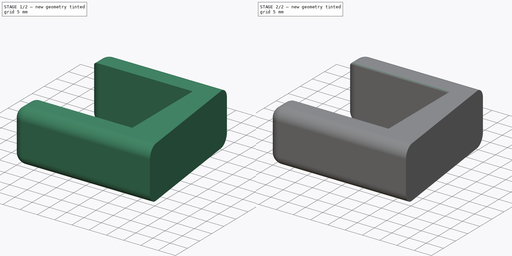
[diagram: build sequence overview — one tinted view per stage of 2, left to right]
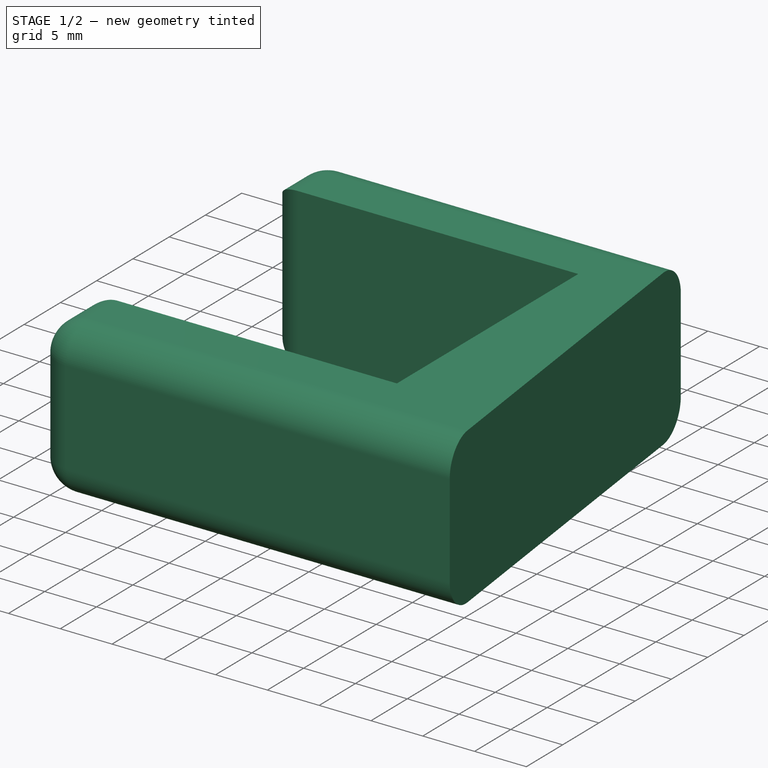
[diagram: stage 1 of 2 — iso view after this stage's code; geometry added in this stage tinted green]
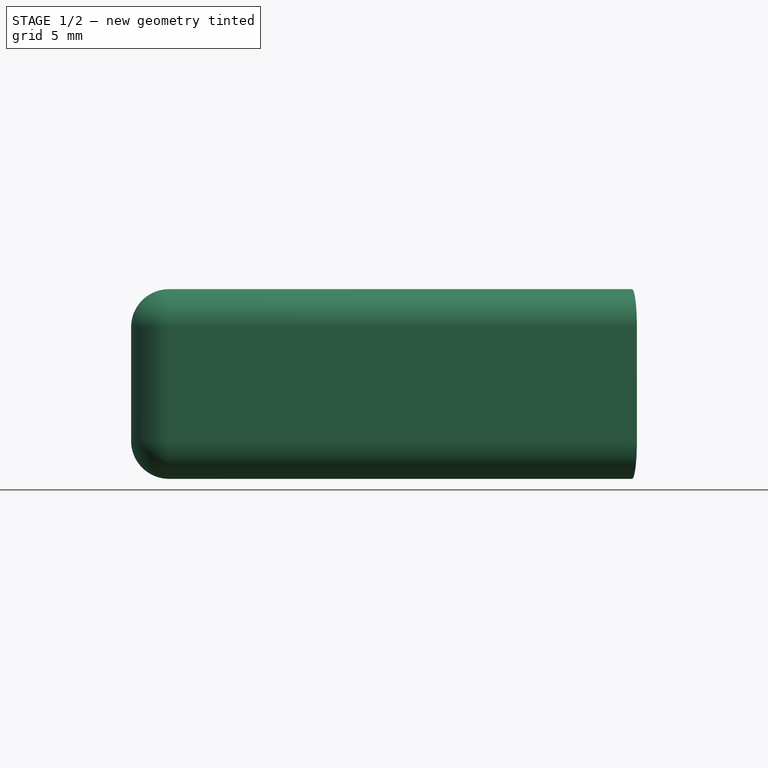
[diagram: stage 1 of 2 — front view after this stage's code; geometry added in this stage tinted green]
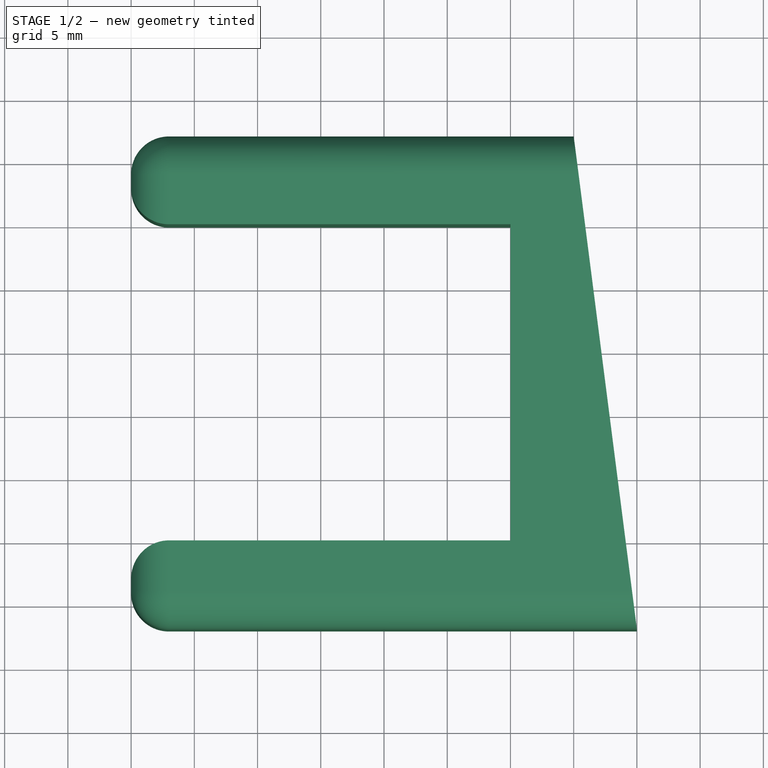
[diagram: stage 1 of 2 — top view after this stage's code; geometry added in this stage tinted green]
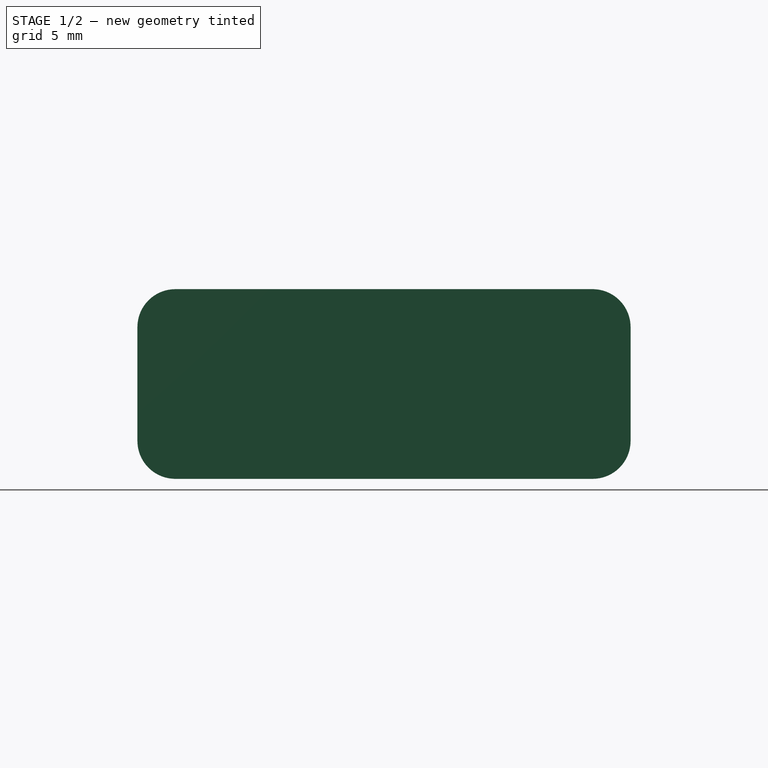
[diagram: stage 1 of 2 — right view after this stage's code; geometry added in this stage tinted green]
FCSTD DOCUMENT  (FreeCAD 0.21R33771 (Git))
Label: makeup_table_trashcan
License: All rights reserved
LicenseURL: https://en.wikipedia.org/wiki/All_rights_reserved
objects: PartDesign::Fillet×2, Sketcher::SketchObject×1, PartDesign::Pad×1, PartDesign::Body×1
note: 8 computed .brp shape members not serialized (recipe doc carries the construction recipe); baked Part::Feature solids carry a one-line shape summary decoded from their .brp

FEATURE [Sketcher::SketchObject] Sketch
  FullyConstrained = true
  MapMode = 5
  Support = -> [XY_Plane]
  sketch-geometry (8):
    g0: LineSegment StartX=0 StartY=0 StartZ=0 EndX=30 EndY=0 EndZ=0
    g1: LineSegment StartX=30 StartY=0 StartZ=0 EndX=30 EndY=25 EndZ=0
    g2: LineSegment StartX=30 StartY=25 StartZ=0 EndX=0 EndY=25 EndZ=0
    g3: LineSegment StartX=0 StartY=25 StartZ=0 EndX=0 EndY=32 EndZ=0
    g4: LineSegment StartX=0 StartY=32 StartZ=0 EndX=35 EndY=32 EndZ=0
    g5: LineSegment StartX=35 StartY=32 StartZ=0 EndX=40 EndY=-7 EndZ=0
    g6: LineSegment StartX=40 StartY=-7 StartZ=0 EndX=0 EndY=-7 EndZ=0
    g7: LineSegment StartX=0 StartY=-7 StartZ=0 EndX=0 EndY=0 EndZ=0
  constraints (23):
    c: Coincident(g0,g-1)
    c: PointOnObject(g0,g-1)
    c: Coincident(g1,g0)
    c: Vertical(g1)
    c: Coincident(g2,g1)
    c: PointOnObject(g2,g-2)
    c: Horizontal(g2)
    c: Coincident(g3,g2)
    c: PointOnObject(g3,g-2)
    c: Coincident(g4,g3)
    c: Horizontal(g4)
    c: Coincident(g5,g4)
    c: Coincident(g6,g5)
    c: PointOnObject(g6,g-2)
    c: Horizontal(g6)
    c: Coincident(g7,g6)
    c: Coincident(g7,g0)
    c: DistanceY(g1,g1) = 25
    c: DistanceX(g0,g0) = 30
    c: Equal(g3,g7)
    c: DistanceY(g3,g3) = 7
    c: DistanceX(g4,g5) = 5
    c: DistanceX(g1,g4) = 5
FEATURE [PartDesign::Pad] Pad
  Direction = (0,0,1)
  Length = 15
  Length2 = 10
  Profile = -> Sketch
  ReferenceAxis = -> Sketch [N_Axis]
  Type = 0
FEATURE [PartDesign::Fillet] Fillet
  Base = -> Pad [Edge16,Edge15,Edge11,Edge8,Edge12,Edge13,Edge1,Edge23,Edge20,Edge24,Edge22,Edge21]
  BaseFeature = -> Pad
  Radius = 3
  SupportTransform = false
  UseAllEdges = false
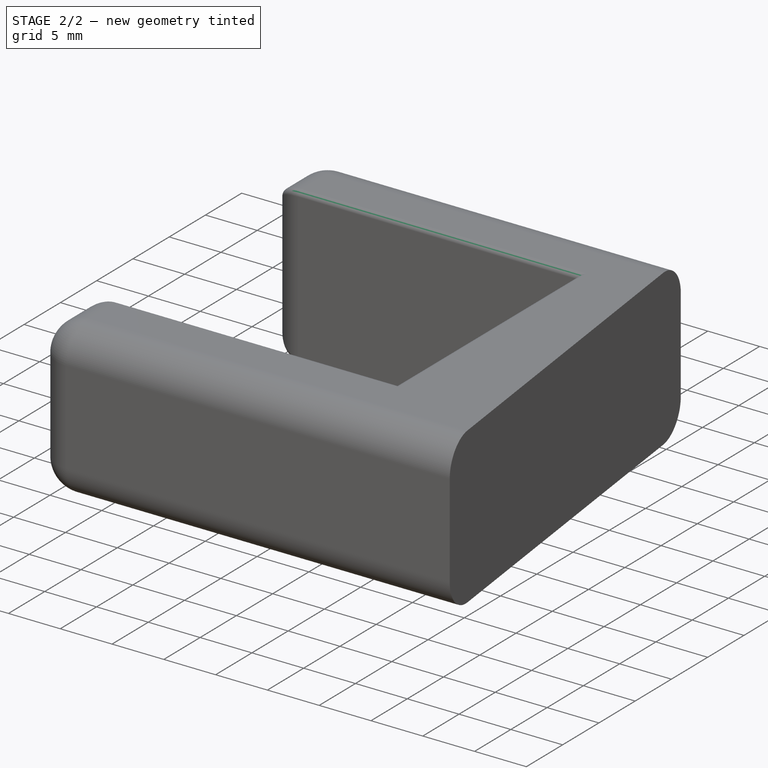
[diagram: stage 2 of 2 — iso view after this stage's code; geometry added in this stage tinted green]
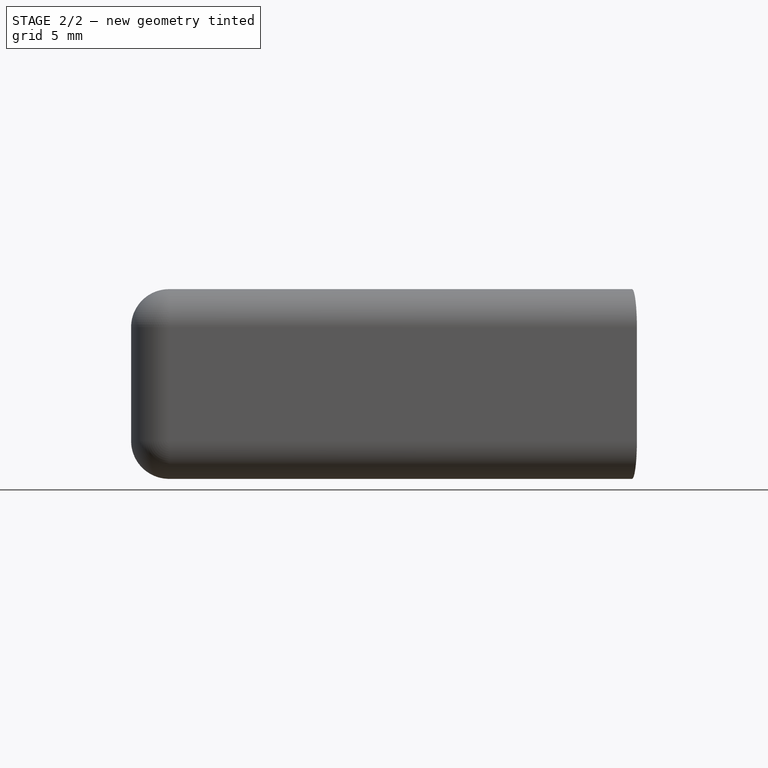
[diagram: stage 2 of 2 — front view after this stage's code; geometry added in this stage tinted green]
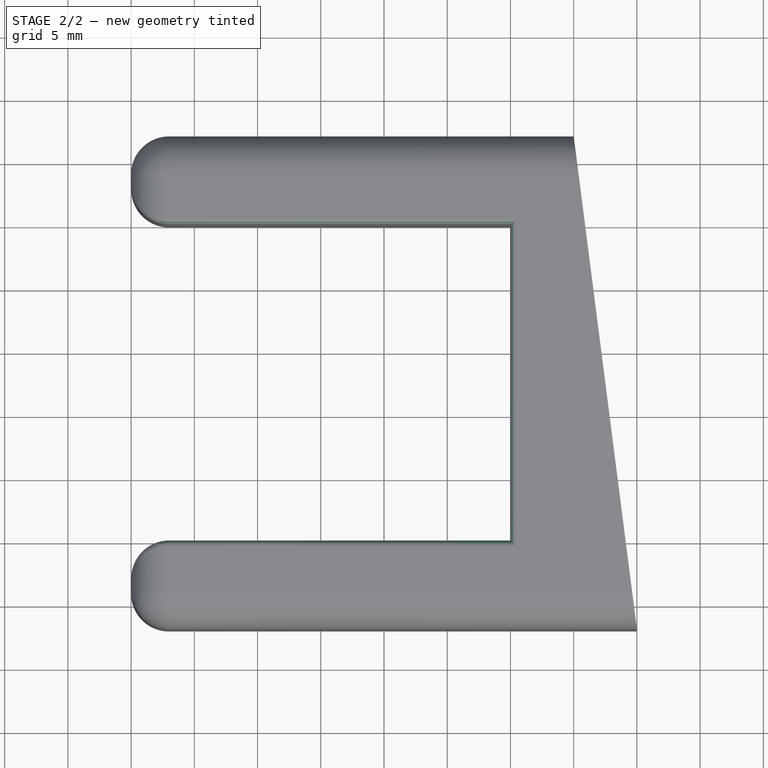
[diagram: stage 2 of 2 — top view after this stage's code; geometry added in this stage tinted green]
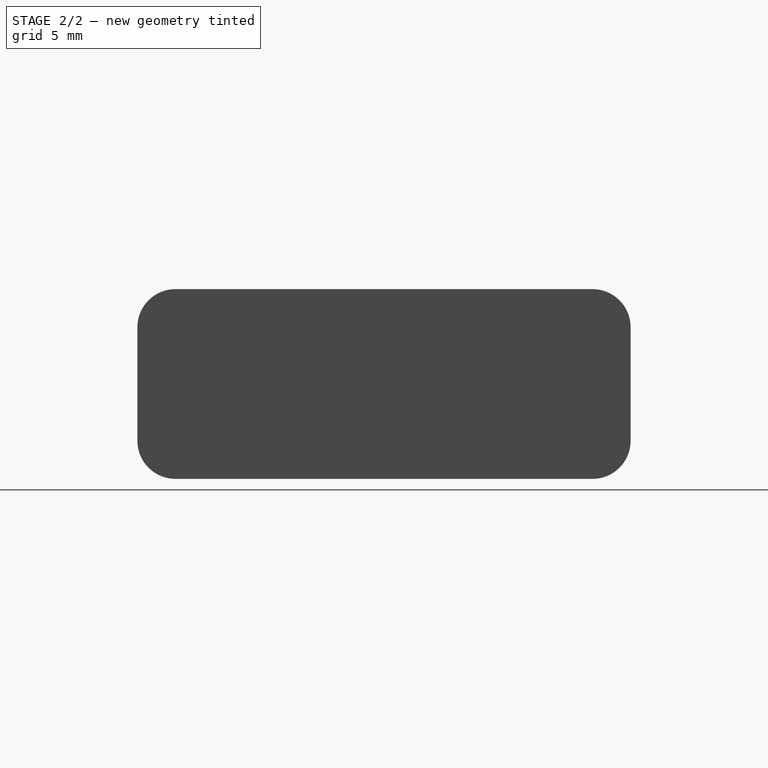
[diagram: stage 2 of 2 — right view after this stage's code; geometry added in this stage tinted green]
FEATURE [PartDesign::Fillet] Fillet001
  Base = -> Fillet [Edge4,Edge1,Edge8,Edge19,Edge6,Edge16]
  BaseFeature = -> Fillet
  Radius = 0.5
  SupportTransform = false
  UseAllEdges = false
FEATURE [PartDesign::Body] Body
  Group = -> [Sketch,Pad,Fillet,Fillet001]
  Origin = -> Origin
  Tip = -> Fillet001
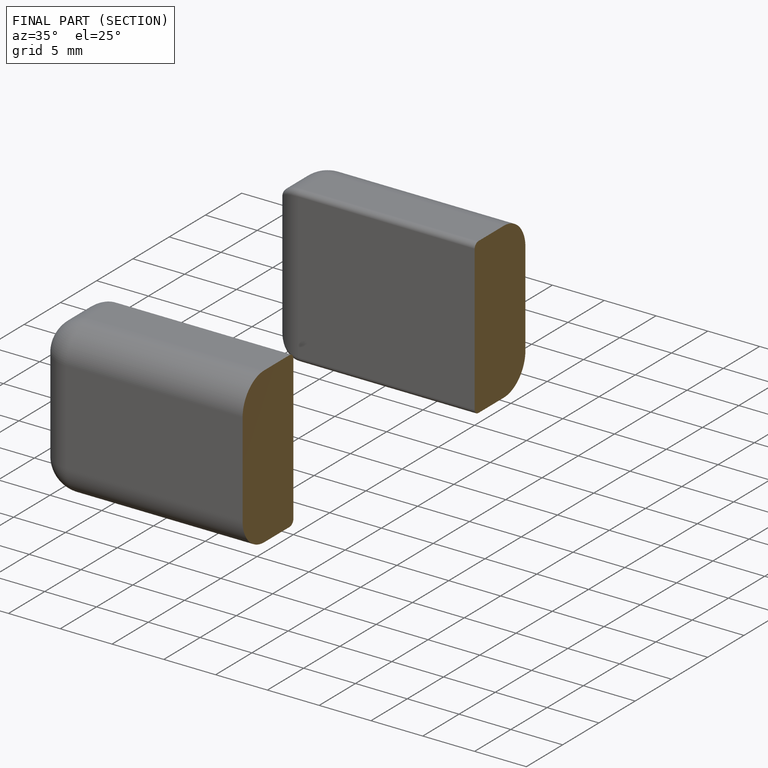
[diagram: finished part — half-section view (interior)]
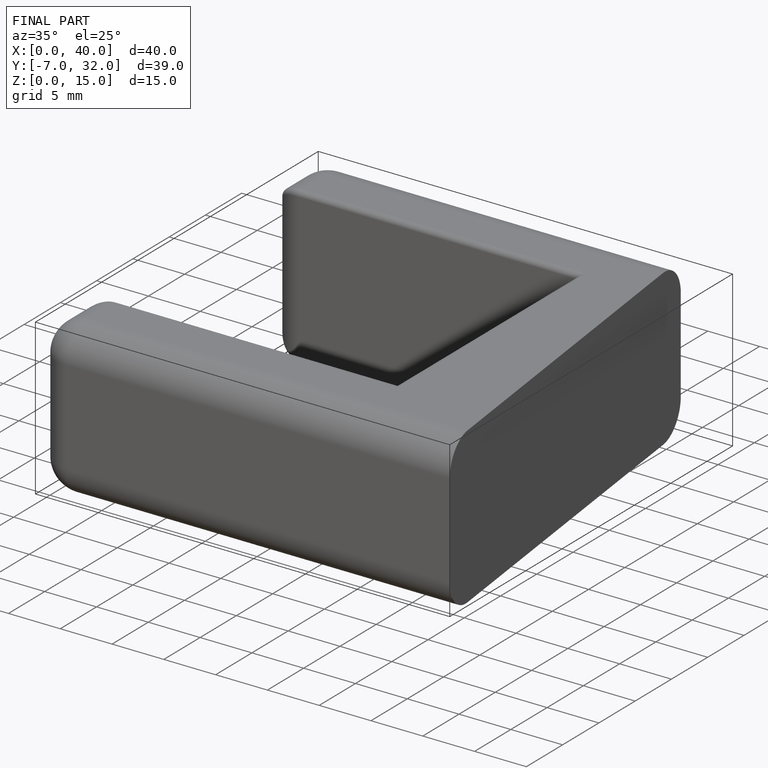
[diagram: finished part — iso view with bounding-box wireframe]
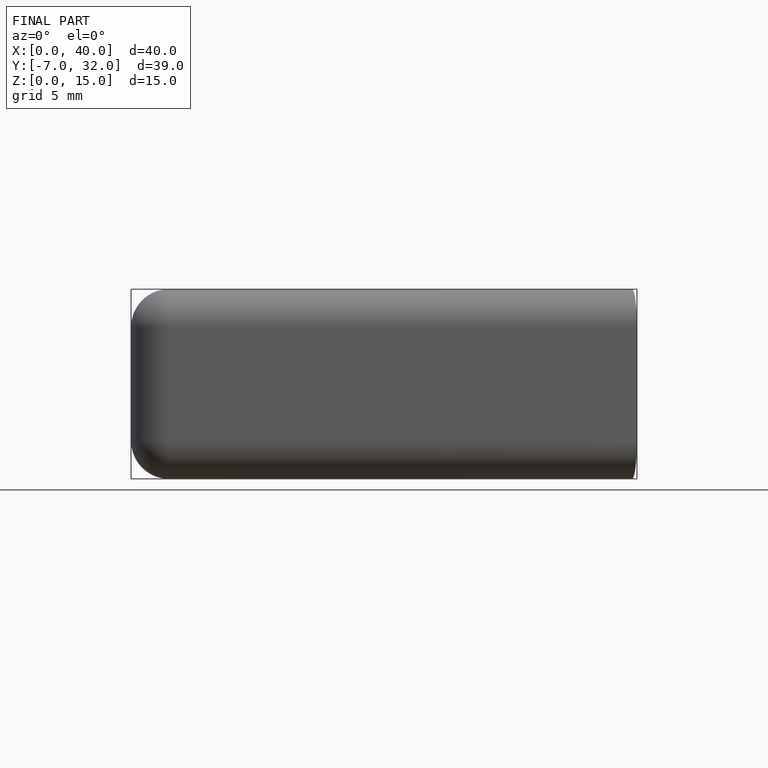
[diagram: finished part — front view with bounding-box wireframe]
